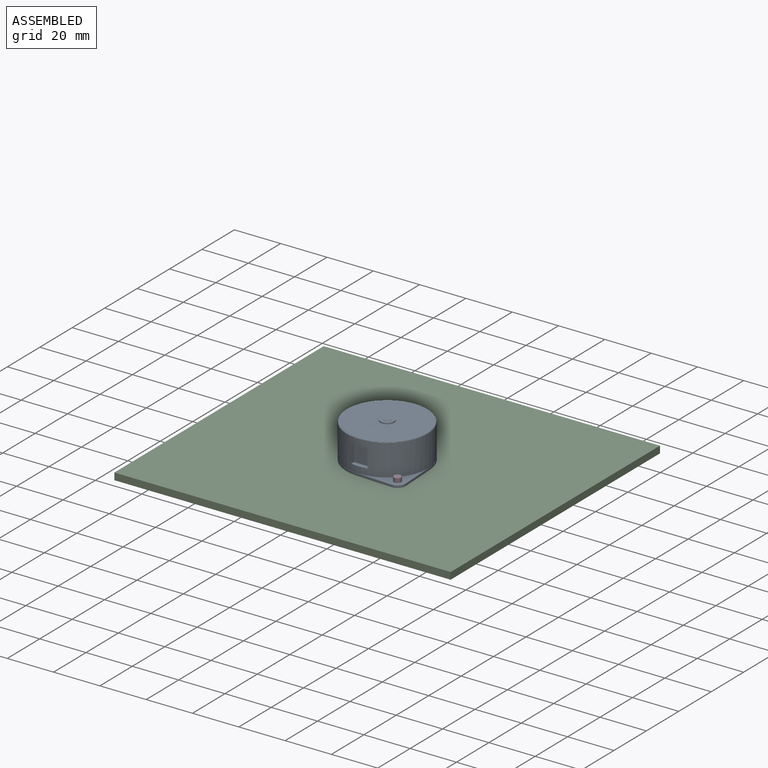
[diagram: assembled view]
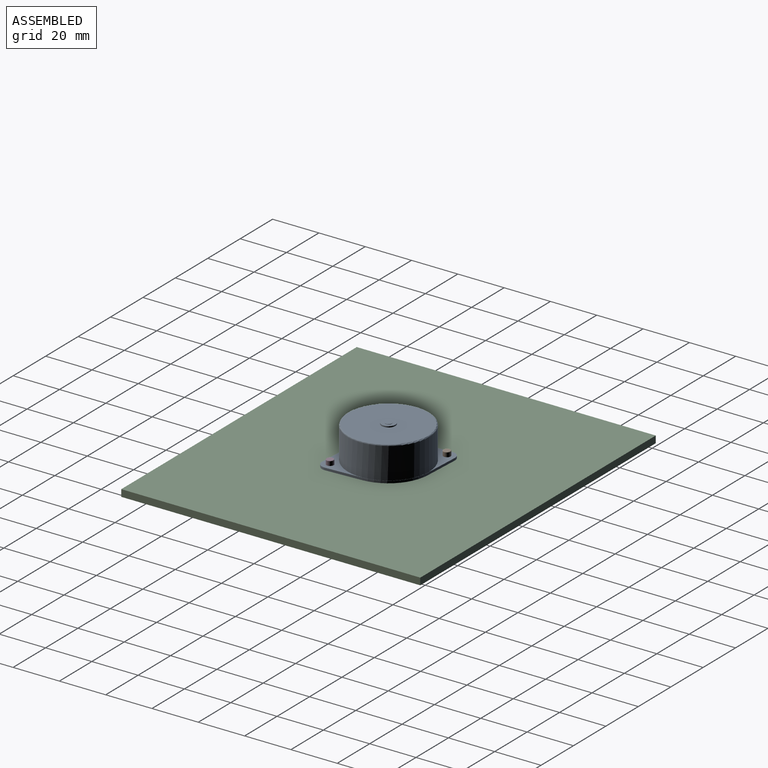
[diagram: assembled view, second angle]
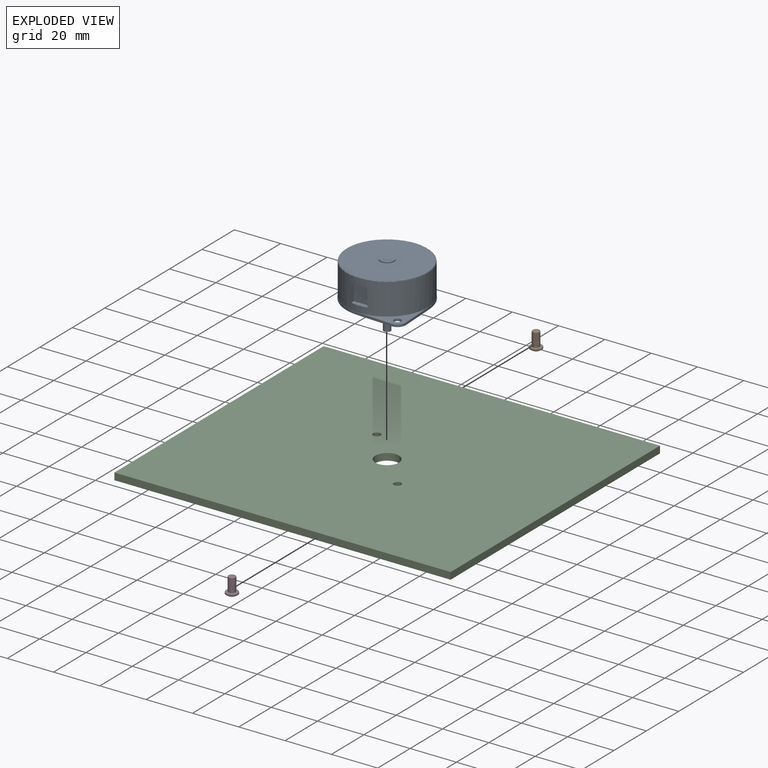
[diagram: exploded view]
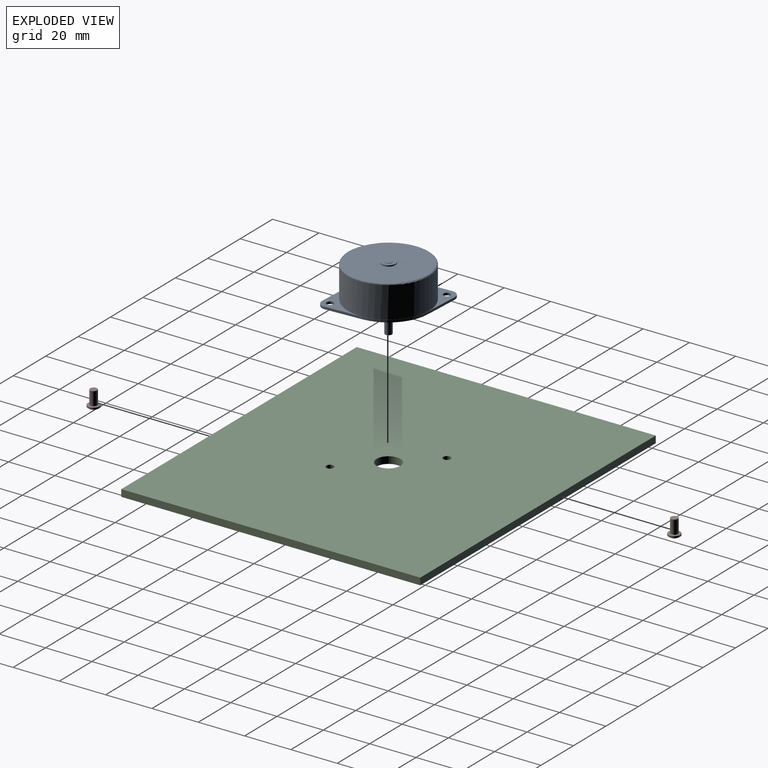
[diagram: exploded view, second angle]
ASSEMBLY  parts=4 mates=3
PART A: 28 faces, bbox 37.9x37.9x28.1 mm
  f0: plane 6x6mm, normal (0,0,1), area 21.2mm2, adj f19,f20
  f1: plane 34x34mm, normal (0,0,1), area 879.6mm2, adj f19,f22
  f2: plane 10x10mm, normal (0,0,-1), area 71.5mm2, adj f16,f17
  f3: plane 36.7x36.7mm, normal (0,0,-1), area 1038.6mm2, adj f6,f7,f8,f9,f10,f11,f12,f13
  f4: cylinder r=17.5mm len=35mm, axis (0,0,-1), area 1429.4mm2, adj f5,f22,f23,f24,f25,f26
  f5: plane 36.7x36.7mm, normal (0,0,1), area 155mm2, adj f4,f6,f7,f8,f9,f10,f11,f12
  f6: cylinder r=3.5mm len=3.68mm, axis (0,0,1), area 5.9mm2, adj f3,f5,f7,f13
  f7: plane 15.56x1mm, normal (-0.05,-1,0), area 15.6mm2, adj f3,f5,f6,f8
  f8: cylinder r=17.58mm len=16.66mm, axis (0,0,1), area 25.8mm2, adj f3,f5,f7,f9
  f9: plane 15.56x1mm, normal (-1,-0.05,0), area 15.6mm2, adj f3,f5,f8,f10
  f10: cylinder r=3.5mm len=3.68mm, axis (0,0,1), area 5.9mm2, adj f3,f5,f9,f11
  f11: plane 15.56x1mm, normal (0.05,1,0), area 15.6mm2, adj f3,f5,f10,f12
  f12: cylinder r=17.58mm len=16.66mm, axis (0,0,1), area 25.8mm2, adj f3,f5,f11,f13
  f13: plane 15.56x1mm, normal (1,0.05,0), area 15.6mm2, adj f3,f5,f6,f12
  f14: cylinder r=1.5mm len=3mm, axis (0,0,1), area 9.4mm2, adj f3,f5
  f15: cylinder r=1.5mm len=3mm, axis (0,0,1), area 9.4mm2, adj f3,f5
  f16: cylinder r=5mm len=10mm, axis (0,0,1), area 47.1mm2, adj f2,f3
  f17: cylinder r=1.5mm len=11mm, axis (0,0,1), area 103.7mm2, adj f2,f18
  f18: plane 3x3mm, normal (0,0,-1), area 7.1mm2, adj f17
  f19: cylinder r=3mm len=6mm, axis (0,0,-1), area 9.4mm2, adj f0,f1
  f20: cylinder r=1.5mm len=3mm, axis (0,0,-1), area 0.9mm2, adj f0,f21
  f21: plane 3x3mm, normal (0,0,1), area 7.1mm2, adj f20
  f22: torus R=17mm, axis (0,0,1), area 85.5mm2, adj f1,f4
  f23: plane 7.8x1.65mm, normal (1,0,0), area 12.8mm2, adj f4,f24,f26,f27
  f24: plane 7x2mm, normal (0,0,-1), area 13.2mm2, adj f4,f23,f25,f27
  f25: plane 7.8x1.65mm, normal (-1,0,0), area 12.8mm2, adj f4,f24,f26,f27
  f26: plane 7x2mm, normal (0,0,1), area 13.2mm2, adj f4,f23,f25,f27
  f27: plane 7.8x7mm, normal (0,-1,0), area 54.6mm2, adj f23,f24,f25,f26
PART B: 14 faces, bbox 5.2x5.2x7.6 mm
  f0: torus R=0.05mm, axis (0,0,-1), area 18.3mm2, adj f4,f7,f8,f9,f10,f11,f12
  f1: plane 4.84x4.84mm, normal (0,0,-1), area 10.9mm2, adj f2,f6
  f2: cylinder r=1.55mm len=5.86mm, axis (0,0,-1), area 57mm2, adj f1,f5
  f3: plane 2.84x2.84mm, normal (0,0,-1), area 6.4mm2, adj f5
  f4: cylinder r=2.55mm len=5.09mm, axis (0,0,-1), area 10mm2, adj f0,f6
  f5: cone r=1.42mm half-angle=45deg, axis (0,0,1), area 1.6mm2, adj f2,f3
  f6: cone r=2.42mm half-angle=45deg, axis (0,0,1), area 2.8mm2, adj f1,f4
  f7: plane 1.38x1.32mm, normal (-1,0.05,0), area 1.8mm2, adj f0,f8,f12,f13
  f8: plane 1.32x1.23mm, normal (-0.46,0.89,0), area 1.8mm2, adj f0,f7,f9,f13
  f9: plane 1.32x1.16mm, normal (0.54,0.84,0), area 1.8mm2, adj f0,f8,f10,f13
  f10: plane 1.47x1.41mm, normal (1,-0.05,0), area 1.8mm2, adj f0,f9,f11,f13
  f11: plane 1.32x1.23mm, normal (0.46,-0.89,0), area 1.8mm2, adj f0,f10,f12,f13
  f12: plane 1.32x1.16mm, normal (-0.54,-0.84,0), area 1.8mm2, adj f0,f7,f11,f13
  f13: plane 2.76x2.45mm, normal (0,0,1), area 4.9mm2, adj f7,f8,f9,f10,f11,f12
PART C: 9 faces, bbox 145.2x129.1x3 mm
  f0: plane 129.13x3mm, normal (1,0,0), area 387.4mm2, adj f1,f5,f7,f8
  f1: plane 145.24x3mm, normal (0,1,0), area 435.7mm2, adj f0,f2,f7,f8
  f2: plane 129.13x3mm, normal (-1,0,0), area 387.4mm2, adj f1,f5,f7,f8
  f3: cylinder r=1.62mm len=3.25mm, axis (0,0,-1), area 30.6mm2, adj f7,f8
  f4: cylinder r=5.12mm len=10.25mm, axis (0,0,-1), area 96.6mm2, adj f7,f8
  f5: plane 145.24x3mm, normal (0,-1,0), area 435.7mm2, adj f0,f2,f7,f8
  f6: cylinder r=1.62mm len=3.25mm, axis (0,0,-1), area 30.6mm2, adj f7,f8
  f7: plane 145.24x129.13mm, normal (0,0,1), area 18656.7mm2, adj f0,f1,f2,f3,f4,f5,f6
  f8: plane 145.24x129.13mm, normal (0,0,-1), area 18656.7mm2, adj f0,f1,f2,f3,f4,f5,f6
PART D: same geometry as B
PLACE A t=(-39.49,-3.52,-16)mm
PLACE B rot(axis=(1,0,0),180deg) t=(-54.34,11.33,-14.01)mm
PLACE C rot(axis=(1,0,0),180deg) t=(-39.49,-3.52,-17)mm
PLACE D rot(axis=(1,0,0),180deg) t=(-24.64,-18.37,-14.01)mm
MATE fastened D.f0 <-> C.f3  axis (0,0,1) through (-24.64,-18.37,-20)mm
MATE fastened C.f3 <-> A.f6  axis (0,0,1) through (-24.64,-18.37,-17)mm
MATE fastened B.f0 <-> C.f6  axis (0,0,1) through (-54.34,11.33,-20)mm
